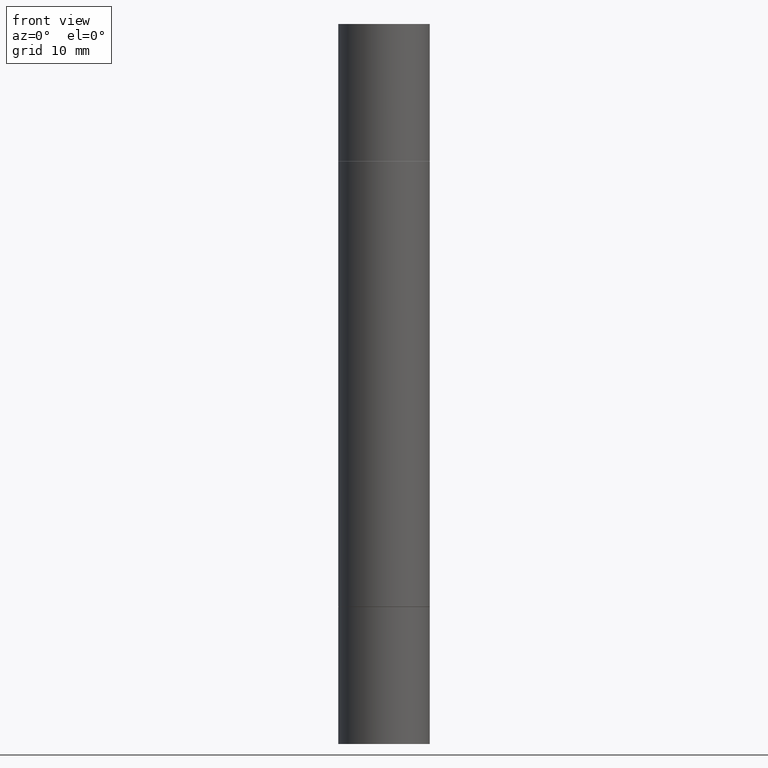
[diagram: clean part render]
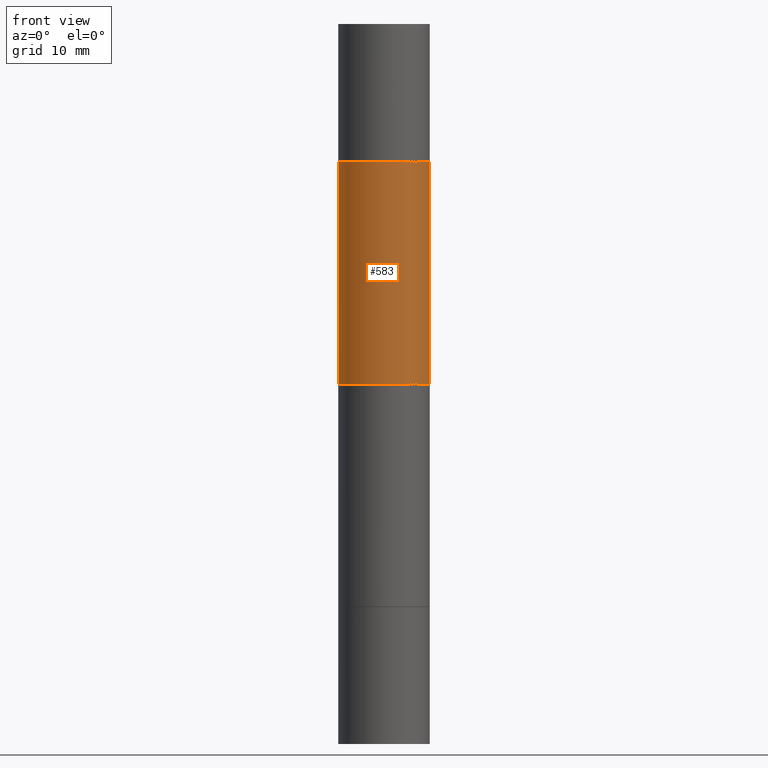
[diagram: same view with one face highlighted and labeled with its STEP entity id]
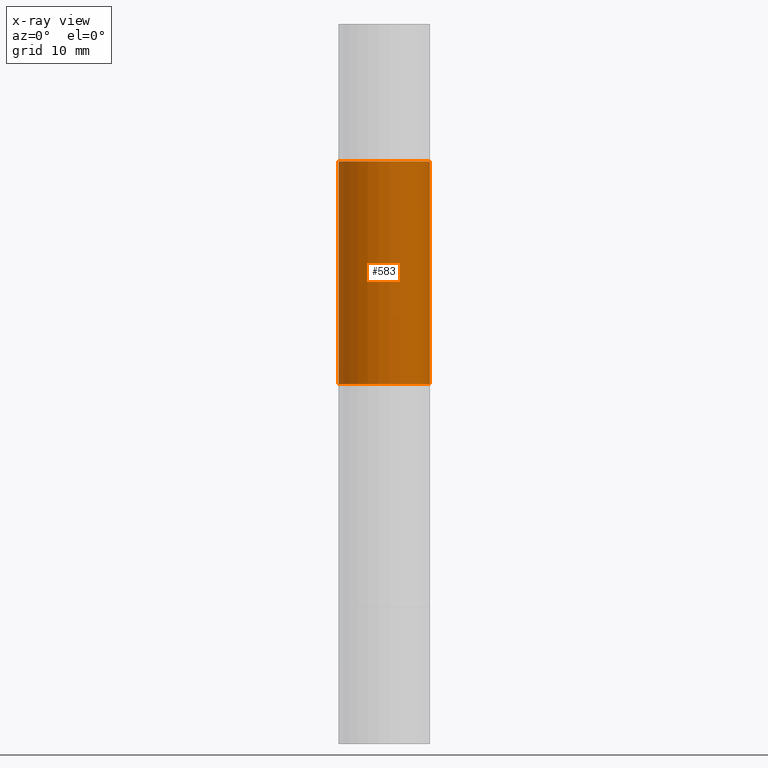
[diagram: x-ray of the same camera — body ghosted, the highlighted face saturated]
A machine part, front view. The second image highlights one B-rep face of the part: STEP entity #583.
The next image is the same camera in x-ray: the body ghosted, the highlighted face saturated — about 0% of this face is hidden behind the body in this view.
In plain terms, the highlighted cylindrical surface (partial cylindrical patch) has radius 4.0005 mm, axis along (-0, -0, -1).
Its self-contained STEP definition (entity closure, byte-faithful):
#30 = DIRECTION ( 'NONE',  ( 2.445468806185136597E-29, 3.492890411551752677E-15, 1.000000000000000000 ) ) ;
#32 = CIRCLE ( 'NONE', #245, 0.1574999999999998901 ) ;
#51 = ORIENTED_EDGE ( 'NONE', *, *, #610, .F. ) ;
#59 = VECTOR ( 'NONE', #504, 39.37007874015748143 ) ;
#68 = LINE ( 'NONE', #604, #59 ) ;
#80 = ORIENTED_EDGE ( 'NONE', *, *, #342, .F. ) ;
#133 = EDGE_CURVE ( 'NONE', #674, #215, #68, .T. ) ;
#146 = DIRECTION ( 'NONE',  ( 0.000000000000000000, 1.000000000000000000, -3.469013325287955660E-15 ) ) ;
#182 = CARTESIAN_POINT ( 'NONE',  ( 4.907811347132950827E-29, -1.651786859309018332E-15, -0.4733999999999996544 ) ) ;
#207 = DIRECTION ( 'NONE',  ( 1.000000000000000000, -6.982962677686261189E-15, 0.000000000000000000 ) ) ;
#215 = VERTEX_POINT ( 'NONE', #294 ) ;
#244 = DIRECTION ( 'NONE',  ( 1.000000000000000000, -6.982962677686268288E-15, 0.000000000000000000 ) ) ;
#245 = AXIS2_PLACEMENT_3D ( 'NONE', #363, #370, #146 ) ;
#258 = FACE_OUTER_BOUND ( 'NONE', #620, .T. ) ;
#294 = CARTESIAN_POINT ( 'NONE',  ( 0.1574999999999998901, -4.090690342573258113E-15, -1.240149999999999864 ) ) ;
#301 = EDGE_CURVE ( 'NONE', #522, #553, #500, .T. ) ;
#342 = EDGE_CURVE ( 'NONE', #522, #674, #614, .T. ) ;
#354 = ORIENTED_EDGE ( 'NONE', *, *, #133, .F. ) ;
#363 = CARTESIAN_POINT ( 'NONE',  ( 3.032748139990496817E-29, -4.329960582366326879E-15, -1.240149999999999864 ) ) ;
#370 = DIRECTION ( 'NONE',  ( -0.000000000000000000, -3.492185875197449130E-15, -1.000000000000000000 ) ) ;
#395 = CARTESIAN_POINT ( 'NONE',  ( -0.1574999999999998901, -7.581140191603216936E-15, -2.480299999999999727 ) ) ;
#446 = AXIS2_PLACEMENT_3D ( 'NONE', #182, #30, #244 ) ;
#448 = AXIS2_PLACEMENT_3D ( 'NONE', #630, #481, #207 ) ;
#481 = DIRECTION ( 'NONE',  ( -2.445468806185136597E-29, -3.492890411551752677E-15, -1.000000000000000000 ) ) ;
#485 = ORIENTED_EDGE ( 'NONE', *, *, #301, .T. ) ;
#487 = CARTESIAN_POINT ( 'NONE',  ( 0.1575000000000000011, -2.751603481044606995E-15, -0.4733999999999996544 ) ) ;
#500 = LINE ( 'NONE', #395, #638 ) ;
#504 = DIRECTION ( 'NONE',  ( -2.445468806185136877E-29, -3.492890411551753071E-15, -1.000000000000000000 ) ) ;
#522 = VERTEX_POINT ( 'NONE', #527 ) ;
#527 = CARTESIAN_POINT ( 'NONE',  ( -0.1575000000000000011, -5.712584246600035385E-16, -0.4733999999999996544 ) ) ;
#531 = CYLINDRICAL_SURFACE ( 'NONE', #448, 0.1574999999999998901 ) ;
#553 = VERTEX_POINT ( 'NONE', #574 ) ;
#574 = CARTESIAN_POINT ( 'NONE',  ( -0.1574999999999998901, -1.910345286188656432E-15, -1.240149999999999864 ) ) ;
#583 = ADVANCED_FACE ( 'NONE', ( #258 ), #531, .T. ) ;
#604 = CARTESIAN_POINT ( 'NONE',  ( 0.1574999999999998901, -9.761485247987817829E-15, -2.480299999999999727 ) ) ;
#610 = EDGE_CURVE ( 'NONE', #215, #553, #32, .T. ) ;
#614 = CIRCLE ( 'NONE', #446, 0.1575000000000000011 ) ;
#620 = EDGE_LOOP ( 'NONE', ( #80, #485, #51, #354 ) ) ;
#630 = CARTESIAN_POINT ( 'NONE',  ( 0.000000000000000000, -8.661668626252231138E-15, -2.480299999999999727 ) ) ;
#638 = VECTOR ( 'NONE', #642, 39.37007874015748143 ) ;
#642 = DIRECTION ( 'NONE',  ( -2.445468806185136877E-29, -3.492890411551753071E-15, -1.000000000000000000 ) ) ;
#674 = VERTEX_POINT ( 'NONE', #487 ) ;